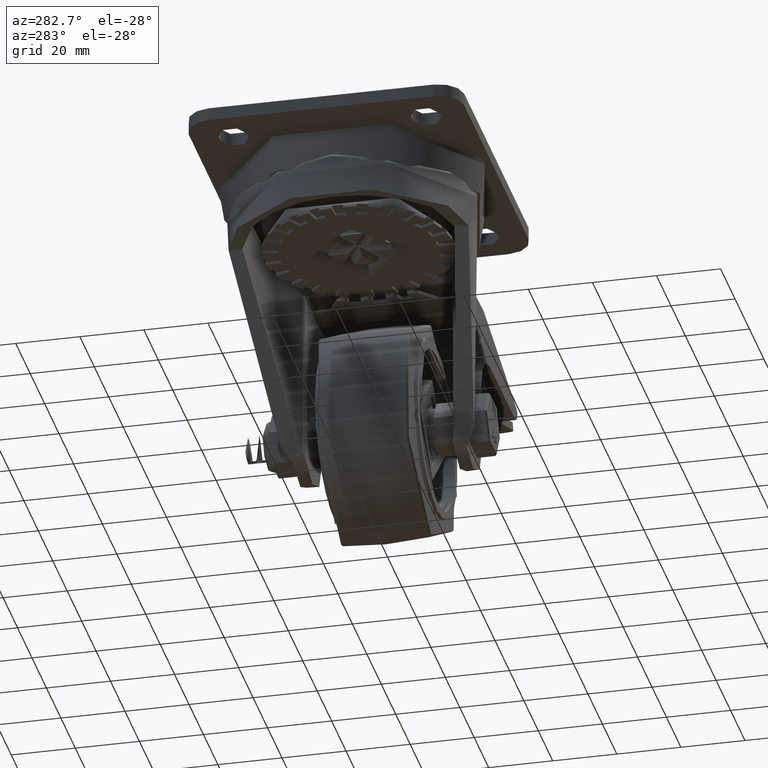
[diagram: clean part render]
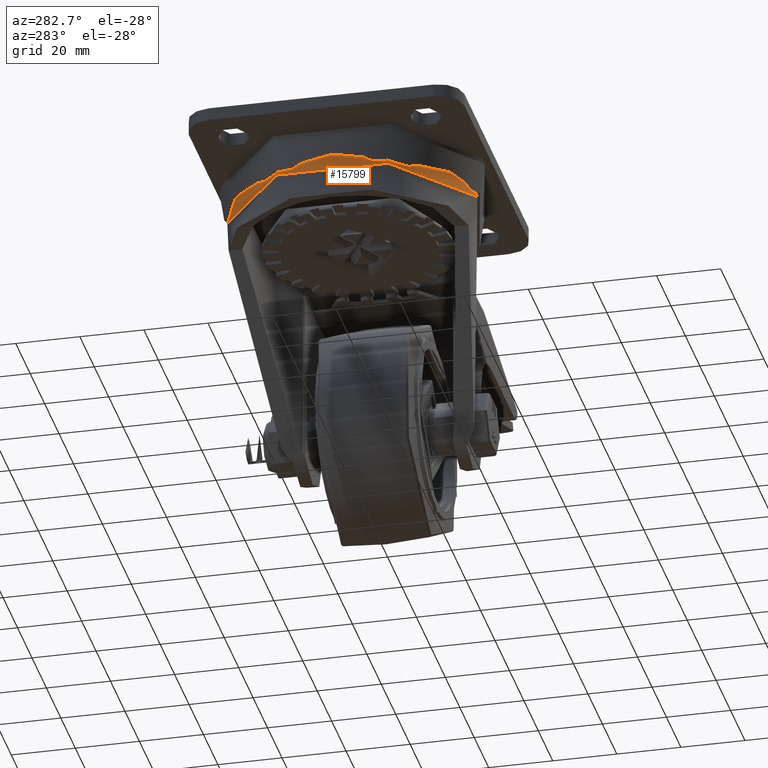
[diagram: same view with one face highlighted and labeled with its STEP entity id]
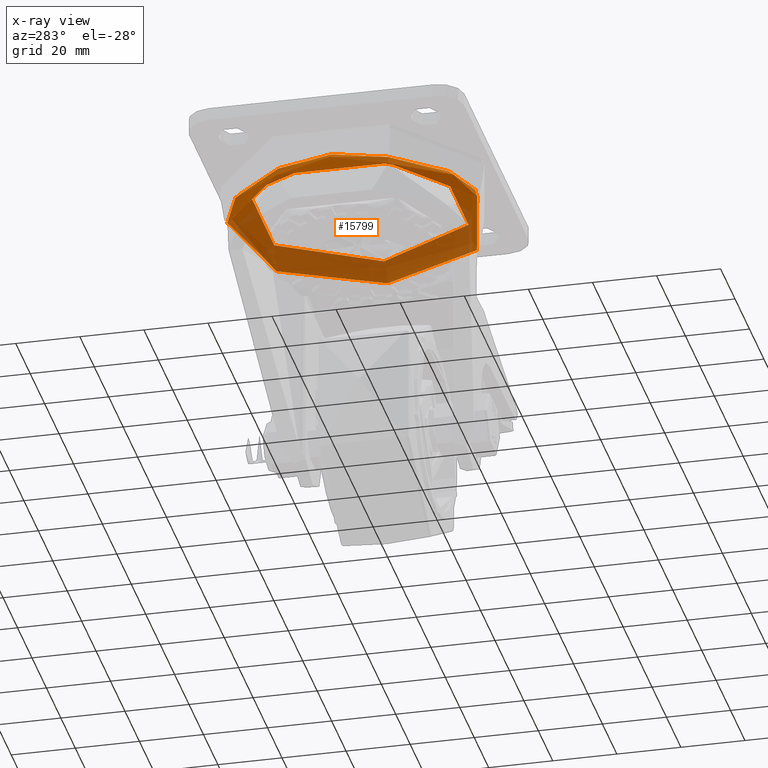
[diagram: x-ray of the same camera — body ghosted, the highlighted face saturated]
A machine part, auxiliary view. The second image highlights one B-rep face of the part: STEP entity #15799.
The next image is the same camera in x-ray: the body ghosted, the highlighted face saturated — about 52% of this face is hidden behind the body in this view.
In plain terms, the highlighted toroidal blend (fillet) surface has major radius 35 mm and minor (blend) radius 5 mm.
Its self-contained STEP definition (entity closure, byte-faithful):
#1500=TOROIDAL_SURFACE('',#17208,35.,5.);
#1729=FACE_OUTER_BOUND('',#2709,.T.);
#2709=EDGE_LOOP('',(#11525,#11526,#11527,#11528));
#5910=CIRCLE('',#17205,40.);
#5913=CIRCLE('',#17209,5.);
#5914=CIRCLE('',#17210,35.);
#6953=VERTEX_POINT('',#24524);
#6965=VERTEX_POINT('',#24627);
#8618=EDGE_CURVE('',#6953,#6953,#5910,.T.);
#8631=EDGE_CURVE('',#6953,#6965,#5913,.T.);
#8632=EDGE_CURVE('',#6965,#6965,#5914,.T.);
#11525=ORIENTED_EDGE('',*,*,#8618,.T.);
#11526=ORIENTED_EDGE('',*,*,#8631,.T.);
#11527=ORIENTED_EDGE('',*,*,#8632,.T.);
#11528=ORIENTED_EDGE('',*,*,#8631,.F.);
#15799=ADVANCED_FACE('',(#1729),#1500,.T.);
#17205=AXIS2_PLACEMENT_3D('',#24526,#19743,#19744);
#17208=AXIS2_PLACEMENT_3D('',#24626,#19751,#19752);
#17209=AXIS2_PLACEMENT_3D('',#24628,#19753,#19754);
#17210=AXIS2_PLACEMENT_3D('',#24629,#19755,#19756);
#19743=DIRECTION('center_axis',(2.89120579329468E-16,0.,1.));
#19744=DIRECTION('ref_axis',(1.,1.22464679914735E-16,-2.89120579329468E-16));
#19751=DIRECTION('center_axis',(-2.89120579329468E-16,0.,-1.));
#19752=DIRECTION('ref_axis',(-1.,0.,2.66453525910038E-16));
#19753=DIRECTION('center_axis',(-1.22464679914735E-16,-1.,3.54070592043461E-32));
#19754=DIRECTION('ref_axis',(1.,-1.22464679914735E-16,-2.77555756156289E-16));
#19755=DIRECTION('center_axis',(-2.89120579329468E-16,0.,-1.));
#19756=DIRECTION('ref_axis',(1.,1.22464679914735E-16,-2.89120579329468E-16));
#24524=CARTESIAN_POINT('',(40.,4.89858719658941E-15,-16.5));
#24526=CARTESIAN_POINT('Origin',(-2.31296463463574E-15,0.,-16.5));
#24626=CARTESIAN_POINT('Origin',(-2.31296463463574E-15,0.,-16.5));
#24627=CARTESIAN_POINT('',(35.,4.28626379701574E-15,-11.5));
#24628=CARTESIAN_POINT('Origin',(35.,-4.28626379701574E-15,-16.5));
#24629=CARTESIAN_POINT('Origin',(-8.67361737988405E-16,0.,-11.5));